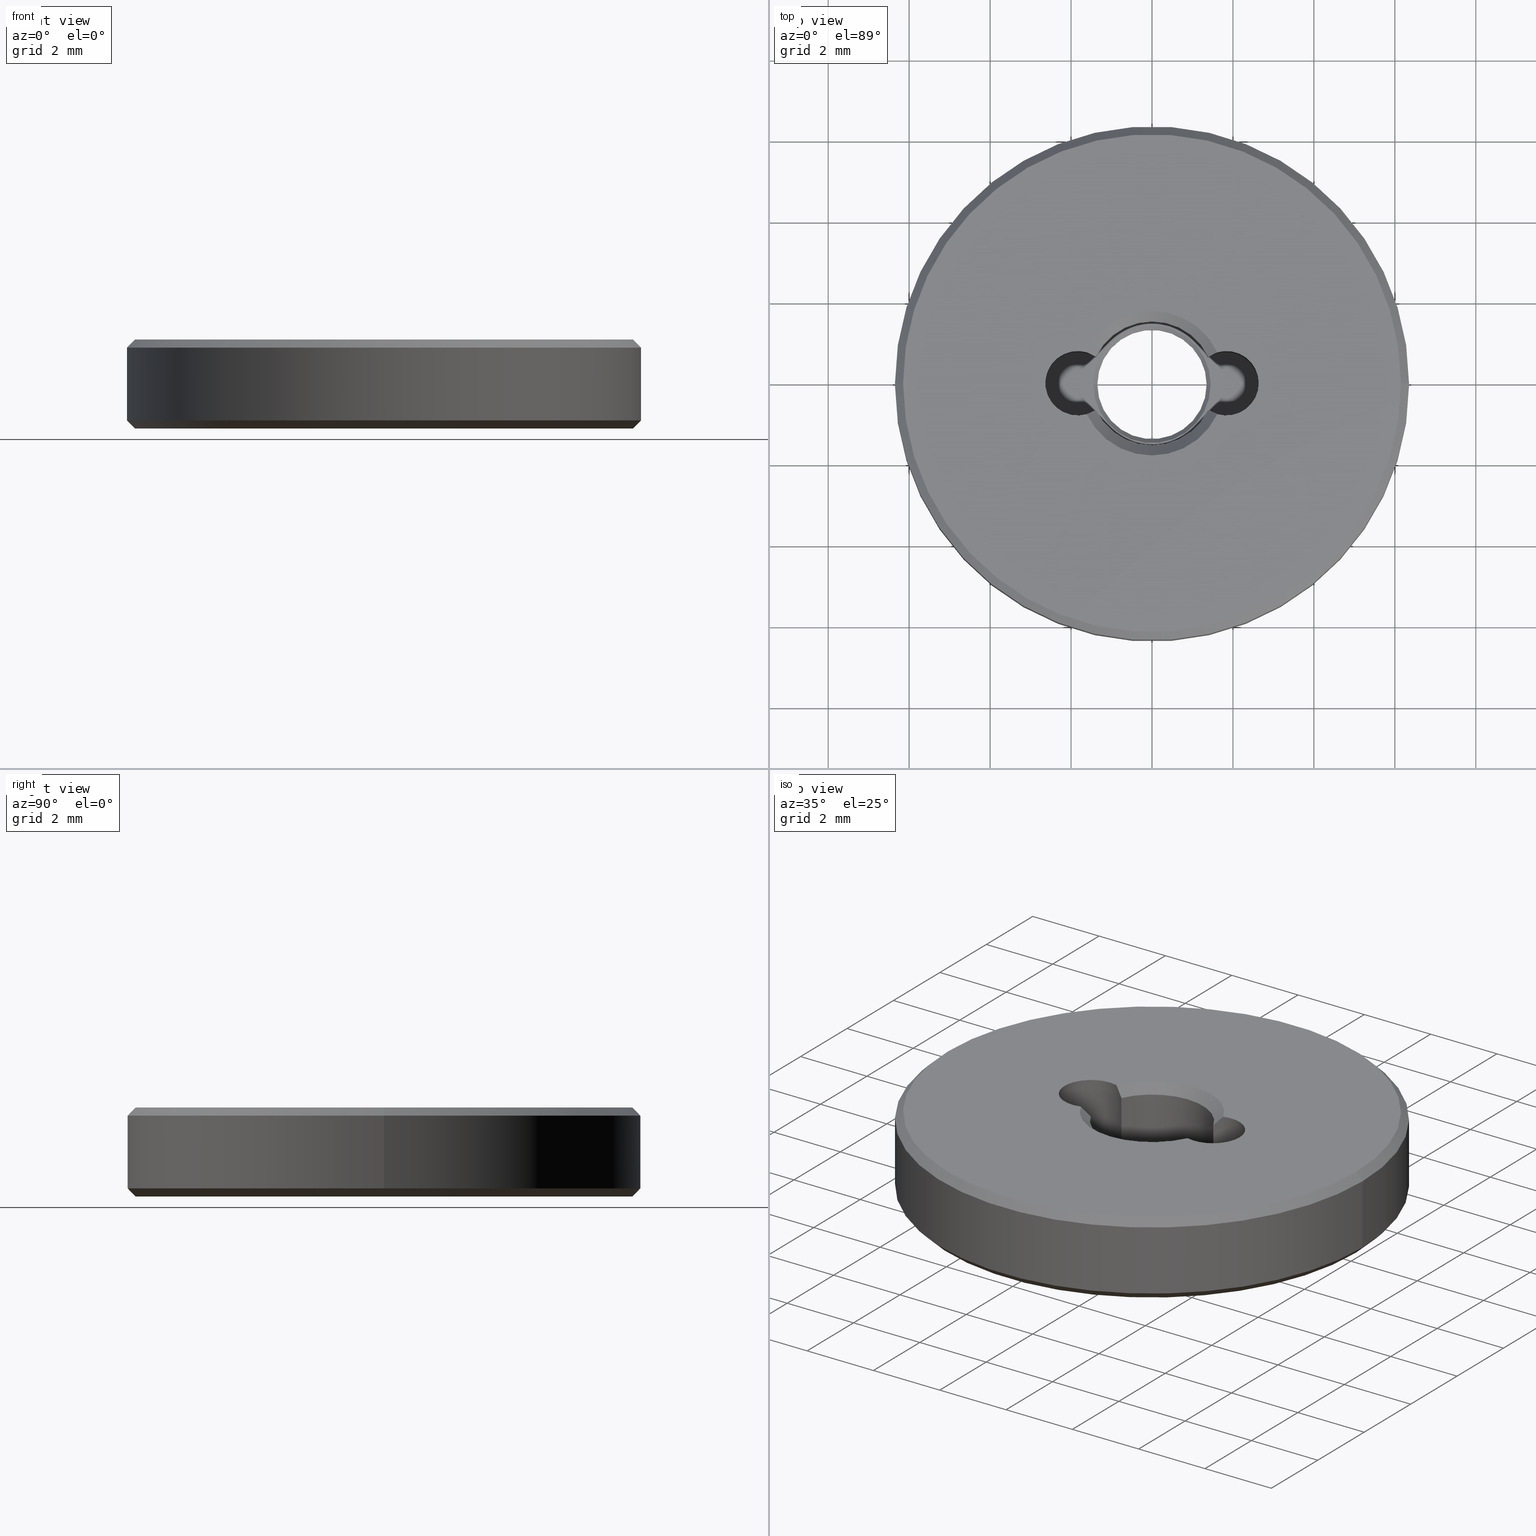
[diagram: canonical four-view strip — front | top / right | iso, engineering-drawing reading convention]
A machine part, canonical four-view strip (front | top / right | iso — engineering-drawing reading convention). The complete STEP part file that produces these views, byte-faithful:
ISO-10303-21;
HEADER;
FILE_DESCRIPTION (( 'STEP AP203' ),
    '1' );
FILE_NAME ('1.6.4.3-ZSJ-05-3.STEP',
    '2024-04-15T05:49:00',
    ( '' ),
    ( '' ),
    'SwSTEP 2.0',
    'SolidWorks 2021',
    '' );
FILE_SCHEMA (( 'CONFIG_CONTROL_DESIGN' ));
ENDSEC;

DATA;
#1 = AXIS2_PLACEMENT_3D ( 'NONE', #272, #428, #642 ) ;
#2 = VECTOR ( 'NONE', #532, 1000.000000000000000 ) ;
#3 = VERTEX_POINT ( 'NONE', #302 ) ;
#4 = ADVANCED_FACE ( 'NONE', ( #242 ), #486, .T. ) ;
#5 = EDGE_CURVE ( 'NONE', #235, #424, #351, .T. ) ;
#6 = CYLINDRICAL_SURFACE ( 'NONE', #141, 1.350000000000000089 ) ;
#7 = VERTEX_POINT ( 'NONE', #27 ) ;
#8 = SECURITY_CLASSIFICATION_LEVEL ( 'unclassified' ) ;
#9 = DIRECTION ( 'NONE',  ( -0.000000000000000000, -0.000000000000000000, -1.000000000000000000 ) ) ;
#10 = ORIENTED_EDGE ( 'NONE', *, *, #292, .F. ) ;
#11 = APPROVAL_DATE_TIME ( #274, #564 ) ;
#12 = CARTESIAN_POINT ( 'NONE',  ( 0.000000000000000000, 0.000000000000000000, 0.6000000000000000888 ) ) ;
#13 = ORIENTED_EDGE ( 'NONE', *, *, #403, .T. ) ;
#14 = VECTOR ( 'NONE', #645, 1000.000000000000000 ) ;
#15 = AXIS2_PLACEMENT_3D ( 'NONE', #61, #444, #394 ) ;
#16 = DIRECTION ( 'NONE',  ( -0.000000000000000000, -0.000000000000000000, -1.000000000000000000 ) ) ;
#17 = ORIENTED_EDGE ( 'NONE', *, *, #183, .T. ) ;
#18 = DIRECTION ( 'NONE',  ( 1.000000000000000000, 0.000000000000000000, 0.000000000000000000 ) ) ;
#19 = CARTESIAN_POINT ( 'NONE',  ( 1.834999999999999742, 2.247226876435391980E-16, 0.6000000000000003109 ) ) ;
#20 = DIRECTION ( 'NONE',  ( -0.000000000000000000, -0.000000000000000000, -1.000000000000000000 ) ) ;
#21 = DIRECTION ( 'NONE',  ( 1.000000000000000000, 0.000000000000000000, 0.000000000000000000 ) ) ;
#22 = VECTOR ( 'NONE', #88, 1000.000000000000000 ) ;
#23 = CONICAL_SURFACE ( 'NONE', #152, 6.349999999999999645, 0.7853981633974504994 ) ;
#24 = ADVANCED_FACE ( 'NONE', ( #504 ), #87, .F. ) ;
#25 = CARTESIAN_POINT ( 'NONE',  ( 6.150000000000000355, 0.000000000000000000, 0.000000000000000000 ) ) ;
#26 = EDGE_CURVE ( 'NONE', #424, #228, #70, .T. ) ;
#27 = CARTESIAN_POINT ( 'NONE',  ( 1.385136239782015943, 0.6615304960790076017, 1.949999999999997957 ) ) ;
#28 = CARTESIAN_POINT ( 'NONE',  ( 0.000000000000000000, 0.000000000000000000, 0.6000000000000000888 ) ) ;
#29 = DIRECTION ( 'NONE',  ( 0.000000000000000000, 0.000000000000000000, 1.000000000000000000 ) ) ;
#30 = CARTESIAN_POINT ( 'NONE',  ( 0.000000000000000000, 0.000000000000000000, 2.200000000000000178 ) ) ;
#31 = CARTESIAN_POINT ( 'NONE',  ( -1.834999999999999742, -2.247226876435391980E-16, 2.200000000000000178 ) ) ;
#32 = EDGE_CURVE ( 'NONE', #658, #445, #453, .T. ) ;
#33 = AXIS2_PLACEMENT_3D ( 'NONE', #704, #217, #649 ) ;
#34 = CIRCLE ( 'NONE', #266, 1.599999999999998979 ) ;
#35 = CARTESIAN_POINT ( 'NONE',  ( -1.385136239782015943, 0.6615304960790072686, 1.949999999999998179 ) ) ;
#36 = CARTESIAN_POINT ( 'NONE',  ( 1.611294277929156360, -0.7680857698934172584, 2.200000000000000178 ) ) ;
#37 = CARTESIAN_POINT ( 'NONE',  ( -6.349999999999999645, 7.776507174585692163E-16, 0.1999999999999987899 ) ) ;
#38 = ORIENTED_EDGE ( 'NONE', *, *, #505, .T. ) ;
#39 = DIRECTION ( 'NONE',  ( 0.000000000000000000, 0.000000000000000000, 1.000000000000000000 ) ) ;
#40 = CARTESIAN_POINT ( 'NONE',  ( -1.530260531068683427, 0.7444846128819502251, 2.116696400286292246 ) ) ;
#41 = VERTEX_POINT ( 'NONE', #191 ) ;
#42 = DIRECTION ( 'NONE',  ( 0.000000000000000000, 0.000000000000000000, 1.000000000000000000 ) ) ;
#43 = AXIS2_PLACEMENT_3D ( 'NONE', #633, #366, #577 ) ;
#44 = CIRCLE ( 'NONE', #346, 6.150000000000000355 ) ;
#45 = DIRECTION ( 'NONE',  ( 1.000000000000000000, 0.000000000000000000, 0.000000000000000000 ) ) ;
#46 = ORIENTED_EDGE ( 'NONE', *, *, #655, .F. ) ;
#47 = CARTESIAN_POINT ( 'NONE',  ( 0.000000000000000000, 0.000000000000000000, 2.200000000000000178 ) ) ;
#48 = DIRECTION ( 'NONE',  ( 1.000000000000000000, 0.000000000000000000, 0.000000000000000000 ) ) ;
#49 = ORIENTED_EDGE ( 'NONE', *, *, #185, .T. ) ;
#50 = APPROVAL_ROLE ( '' ) ;
#51 = DIRECTION ( 'NONE',  ( -0.000000000000000000, -0.000000000000000000, 1.000000000000000000 ) ) ;
#52 = VERTEX_POINT ( 'NONE', #407 ) ;
#53 = ADVANCED_FACE ( 'NONE', ( #359 ), #126, .F. ) ;
#54 = EDGE_CURVE ( 'NONE', #443, #3, #622, .T. ) ;
#55 = DIRECTION ( 'NONE',  ( 0.000000000000000000, 0.000000000000000000, 1.000000000000000000 ) ) ;
#56 = AXIS2_PLACEMENT_3D ( 'NONE', #625, #349, #682 ) ;
#57 = AXIS2_PLACEMENT_3D ( 'NONE', #470, #146, #529 ) ;
#58 = ORIENTED_EDGE ( 'NONE', *, *, #448, .T. ) ;
#59 = EDGE_CURVE ( 'NONE', #52, #65, #510, .T. ) ;
#60 = PERSON_AND_ORGANIZATION_ROLE ( 'creator' ) ;
#61 = CARTESIAN_POINT ( 'NONE',  ( 0.000000000000000000, 0.000000000000000000, 0.1999999999999987899 ) ) ;
#62 = EDGE_LOOP ( 'NONE', ( #273, #429, #569, #120 ) ) ;
#63 = COORDINATED_UNIVERSAL_TIME_OFFSET ( 8, 0, .AHEAD. ) ;
#64 = CARTESIAN_POINT ( 'NONE',  ( -1.385136239782015943, 0.6615304960790072686, 1.949999999999998179 ) ) ;
#65 = VERTEX_POINT ( 'NONE', #618 ) ;
#66 = CALENDAR_DATE ( 2024, 15, 4 ) ;
#67 = CARTESIAN_POINT ( 'NONE',  ( 1.385136239782015943, -0.6615304960790072686, 1.400000000000000133 ) ) ;
#68 = EDGE_CURVE ( 'NONE', #41, #222, #520, .T. ) ;
#69 = VERTEX_POINT ( 'NONE', #136 ) ;
#70 = CIRCLE ( 'NONE', #56, 1.450000000000001732 ) ;
#71 = AXIS2_PLACEMENT_3D ( 'NONE', #594, #16, #179 ) ;
#72 = LOCAL_TIME ( 13, 49, 0.000000000000000000, #336 ) ;
#73 = CARTESIAN_POINT ( 'NONE',  ( 0.000000000000000000, 0.000000000000000000, 0.000000000000000000 ) ) ;
#74 = ORIENTED_EDGE ( 'NONE', *, *, #430, .T. ) ;
#75 = DIRECTION ( 'NONE',  ( 1.000000000000000000, 0.000000000000000000, 0.000000000000000000 ) ) ;
#76 = DIRECTION ( 'NONE',  ( 0.000000000000000000, 0.000000000000000000, -1.000000000000000000 ) ) ;
#77 = EDGE_CURVE ( 'NONE', #104, #235, #498, .T. ) ;
#78 = CARTESIAN_POINT ( 'NONE',  ( 1.834999999999999742, 2.247226876435391980E-16, -1.662741699796954853 ) ) ;
#79 = ORIENTED_EDGE ( 'NONE', *, *, #258, .T. ) ;
#80 = AXIS2_PLACEMENT_3D ( 'NONE', #616, #76, #410 ) ;
#81 = AXIS2_PLACEMENT_3D ( 'NONE', #285, #288, #390 ) ;
#82 = EDGE_CURVE ( 'NONE', #531, #104, #249, .T. ) ;
#83 = DIRECTION ( 'NONE',  ( 0.000000000000000000, 0.000000000000000000, 1.000000000000000000 ) ) ;
#84 = DIRECTION ( 'NONE',  ( 1.000000000000000000, 0.000000000000000000, 0.000000000000000000 ) ) ;
#85 = ORIENTED_EDGE ( 'NONE', *, *, #68, .T. ) ;
#86 = CARTESIAN_POINT ( 'NONE',  ( 0.000000000000000000, 0.000000000000000000, 2.200000000000000178 ) ) ;
#87 = CYLINDRICAL_SURFACE ( 'NONE', #354, 1.534999999999999920 ) ;
#88 = DIRECTION ( 'NONE',  ( -0.000000000000000000, -0.000000000000000000, 1.000000000000000000 ) ) ;
#89 = VECTOR ( 'NONE', #490, 1000.000000000000114 ) ;
#90 = DIRECTION ( 'NONE',  ( 1.000000000000000000, 0.000000000000000000, 0.000000000000000000 ) ) ;
#91 = CARTESIAN_POINT ( 'NONE',  ( -1.611294277929156360, 0.7680857698934172584, 2.200000000000000178 ) ) ;
#92 = VERTEX_POINT ( 'NONE', #199 ) ;
#93 = DIRECTION ( 'NONE',  ( -1.000000000000000000, 0.000000000000000000, 0.000000000000000000 ) ) ;
#94 = DIRECTION ( 'NONE',  ( -1.000000000000000000, 0.000000000000000000, 0.000000000000000000 ) ) ;
#95 = EDGE_LOOP ( 'NONE', ( #200, #10, #485, #85, #79, #264 ) ) ;
#96 = EDGE_CURVE ( 'NONE', #386, #698, #413, .T. ) ;
#97 = FACE_BOUND ( 'NONE', #629, .T. ) ;
#98 = CARTESIAN_POINT ( 'NONE',  ( 1.350000000000000089, 0.000000000000000000, 0.4999999999999991673 ) ) ;
#99 = ORIENTED_EDGE ( 'NONE', *, *, #96, .T. ) ;
#100 = AXIS2_PLACEMENT_3D ( 'NONE', #376, #223, #275 ) ;
#101 = AXIS2_PLACEMENT_3D ( 'NONE', #568, #83, #304 ) ;
#102 = CARTESIAN_POINT ( 'NONE',  ( -1.530260531068683649, -0.7444846128819508912, 2.116696400286292690 ) ) ;
#103 = CONICAL_SURFACE ( 'NONE', #177, 1.350000000000000089, 0.7853981633974516097 ) ;
#104 = VERTEX_POINT ( 'NONE', #447 ) ;
#105 = EDGE_CURVE ( 'NONE', #531, #52, #670, .T. ) ;
#106 = CARTESIAN_POINT ( 'NONE',  ( 0.000000000000000000, 0.000000000000000000, 0.000000000000000000 ) ) ;
#107 = EDGE_CURVE ( 'NONE', #92, #360, #613, .T. ) ;
#108 = ORIENTED_EDGE ( 'NONE', *, *, #471, .F. ) ;
#109 = CALENDAR_DATE ( 2024, 15, 4 ) ;
#110 = DIRECTION ( 'NONE',  ( -0.000000000000000000, -0.000000000000000000, -1.000000000000000000 ) ) ;
#111 = ORIENTED_EDGE ( 'NONE', *, *, #206, .F. ) ;
#112 = APPROVAL_ROLE ( '' ) ;
#113 = CARTESIAN_POINT ( 'NONE',  ( 0.000000000000000000, 0.000000000000000000, 0.000000000000000000 ) ) ;
#114 = AXIS2_PLACEMENT_3D ( 'NONE', #468, #522, #214 ) ;
#115 = AXIS2_PLACEMENT_3D ( 'NONE', #507, #676, #402 ) ;
#116 = ORIENTED_EDGE ( 'NONE', *, *, #471, .T. ) ;
#117 = PRODUCT ( '1.6.4.3-ZSJ-05-3', '1.6.4.3-ZSJ-05-3', '', ( #149 ) ) ;
#118 = CALENDAR_DATE ( 2024, 15, 4 ) ;
#119 = PLANE ( 'NONE',  #589 ) ;
#120 = ORIENTED_EDGE ( 'NONE', *, *, #190, .F. ) ;
#121 = APPROVAL_DATE_TIME ( #648, #518 ) ;
#122 = EDGE_CURVE ( 'NONE', #651, #7, #154, .T. ) ;
#123 = DIRECTION ( 'NONE',  ( 0.000000000000000000, 0.000000000000000000, 1.000000000000000000 ) ) ;
#124 = EDGE_LOOP ( 'NONE', ( #374, #244, #392, #701 ) ) ;
#125 = DIRECTION ( 'NONE',  ( 0.7071067811865490160, 0.000000000000000000, 0.7071067811865460184 ) ) ;
#126 = CONICAL_SURFACE ( 'NONE', #534, 1.350000000000000089, 0.7853981633974516097 ) ;
#127 = ORIENTED_EDGE ( 'NONE', *, *, #122, .T. ) ;
#128 = AXIS2_PLACEMENT_3D ( 'NONE', #86, #143, #516 ) ;
#129 = AXIS2_PLACEMENT_3D ( 'NONE', #271, #412, #693 ) ;
#130 =( GEOMETRIC_REPRESENTATION_CONTEXT ( 3 ) GLOBAL_UNCERTAINTY_ASSIGNED_CONTEXT ( ( #687 ) ) GLOBAL_UNIT_ASSIGNED_CONTEXT ( ( #425, #375, #158 ) ) REPRESENTATION_CONTEXT ( 'NONE', 'WORKASPACE' ) );
#131 = CARTESIAN_POINT ( 'NONE',  ( 0.000000000000000000, 0.000000000000000000, 2.000000000000000444 ) ) ;
#132 = ADVANCED_FACE ( 'NONE', ( #263 ), #367, .F. ) ;
#133 = CARTESIAN_POINT ( 'NONE',  ( 0.000000000000000000, 0.000000000000000000, 2.200000000000000178 ) ) ;
#134 = EDGE_CURVE ( 'NONE', #588, #698, #318, .T. ) ;
#135 = DIRECTION ( 'NONE',  ( 1.000000000000000000, 0.000000000000000000, 0.000000000000000000 ) ) ;
#136 = CARTESIAN_POINT ( 'NONE',  ( 1.611294277929156360, 0.7680857698934177025, 2.200000000000000178 ) ) ;
#137 = DIRECTION ( 'NONE',  ( -0.000000000000000000, -0.000000000000000000, 1.000000000000000000 ) ) ;
#138 = EDGE_LOOP ( 'NONE', ( #535, #473, #433, #603 ) ) ;
#139 = ORIENTED_EDGE ( 'NONE', *, *, #559, .T. ) ;
#140 = AXIS2_PLACEMENT_3D ( 'NONE', #321, #533, #94 ) ;
#141 = AXIS2_PLACEMENT_3D ( 'NONE', #434, #171, #385 ) ;
#142 = LOCAL_TIME ( 13, 49, 0.000000000000000000, #593 ) ;
#143 = DIRECTION ( 'NONE',  ( 0.000000000000000000, 0.000000000000000000, 1.000000000000000000 ) ) ;
#144 = CARTESIAN_POINT ( 'NONE',  ( -1.385136239782015943, -0.6615304960790077127, 1.400000000000000133 ) ) ;
#145 = ORIENTED_EDGE ( 'NONE', *, *, #506, .T. ) ;
#146 = DIRECTION ( 'NONE',  ( 0.000000000000000000, 0.000000000000000000, 1.000000000000000000 ) ) ;
#147 = DIRECTION ( 'NONE',  ( -0.000000000000000000, -0.000000000000000000, -1.000000000000000000 ) ) ;
#148 = VERTEX_POINT ( 'NONE', #212 ) ;
#149 = MECHANICAL_CONTEXT ( 'NONE', #326, 'mechanical' ) ;
#150 = DIRECTION ( 'NONE',  ( 0.000000000000000000, 0.000000000000000000, 1.000000000000000000 ) ) ;
#151 = ORIENTED_EDGE ( 'NONE', *, *, #451, .F. ) ;
#152 = AXIS2_PLACEMENT_3D ( 'NONE', #408, #459, #406 ) ;
#153 = APPROVAL_PERSON_ORGANIZATION ( #652, #564, #50 ) ;
#154 = LINE ( 'NONE', #325, #22 ) ;
#155 = EDGE_CURVE ( 'NONE', #377, #41, #607, .T. ) ;
#156 = ORIENTED_EDGE ( 'NONE', *, *, #363, .T. ) ;
#157 = EDGE_CURVE ( 'NONE', #658, #3, #636, .T. ) ;
#158 =( NAMED_UNIT ( * ) SI_UNIT ( $, .STERADIAN. ) SOLID_ANGLE_UNIT ( ) );
#159 = DIRECTION ( 'NONE',  ( -0.7071067811865490160, 8.659560562354953812E-17, 0.7071067811865460184 ) ) ;
#160 = EDGE_LOOP ( 'NONE', ( #167, #598, #116, #541 ) ) ;
#161 = CARTESIAN_POINT ( 'NONE',  ( 1.530260531068682983, 0.7444846128819506692, 2.116696400286292246 ) ) ;
#162 = CARTESIAN_POINT ( 'NONE',  ( 0.000000000000000000, 0.000000000000000000, 2.000000000000000444 ) ) ;
#163 = ORIENTED_EDGE ( 'NONE', *, *, #190, .T. ) ;
#164 = EDGE_CURVE ( 'NONE', #651, #443, #335, .T. ) ;
#165 = CONICAL_SURFACE ( 'NONE', #277, 1.599999999999998979, 0.7853981633974439491 ) ;
#166 = CARTESIAN_POINT ( 'NONE',  ( -1.611294277929156360, -0.7680857698934177025, 2.200000000000000178 ) ) ;
#167 = ORIENTED_EDGE ( 'NONE', *, *, #134, .F. ) ;
#168 = CALENDAR_DATE ( 2024, 15, 4 ) ;
#169 = CARTESIAN_POINT ( 'NONE',  ( 1.350000000000000089, 0.000000000000000000, 0.000000000000000000 ) ) ;
#170 = ORIENTED_EDGE ( 'NONE', *, *, #685, .F. ) ;
#171 = DIRECTION ( 'NONE',  ( -0.000000000000000000, -0.000000000000000000, 1.000000000000000000 ) ) ;
#172 = VERTEX_POINT ( 'NONE', #314 ) ;
#173 = PERSON_AND_ORGANIZATION ( #422, #463 ) ;
#174 = CARTESIAN_POINT ( 'NONE',  ( -6.349999999999999645, 0.000000000000000000, 2.000000000000000444 ) ) ;
#175 = AXIS2_PLACEMENT_3D ( 'NONE', #681, #454, #514 ) ;
#176 = VERTEX_POINT ( 'NONE', #476 ) ;
#177 = AXIS2_PLACEMENT_3D ( 'NONE', #479, #39, #475 ) ;
#178 = COORDINATED_UNIVERSAL_TIME_OFFSET ( 8, 0, .AHEAD. ) ;
#179 = DIRECTION ( 'NONE',  ( 1.000000000000000000, 0.000000000000000000, 0.000000000000000000 ) ) ;
#180 = ORIENTED_EDGE ( 'NONE', *, *, #448, .F. ) ;
#181 = CARTESIAN_POINT ( 'NONE',  ( -1.385136239782015721, -0.6615304960790076017, 1.949999999999997957 ) ) ;
#182 = ORIENTED_EDGE ( 'NONE', *, *, #107, .F. ) ;
#183 = EDGE_CURVE ( 'NONE', #299, #65, #466, .T. ) ;
#184 = DIRECTION ( 'NONE',  ( 1.000000000000000000, 0.000000000000000000, 0.000000000000000000 ) ) ;
#185 = EDGE_CURVE ( 'NONE', #235, #104, #599, .T. ) ;
#186 = CIRCLE ( 'NONE', #33, 6.349999999999999645 ) ;
#187 = CARTESIAN_POINT ( 'NONE',  ( -1.599999999999998979, 0.000000000000000000, 0.000000000000000000 ) ) ;
#188 = AXIS2_PLACEMENT_3D ( 'NONE', #12, #55, #230 ) ;
#189 = DIRECTION ( 'NONE',  ( 0.000000000000000000, 0.000000000000000000, 1.000000000000000000 ) ) ;
#190 = EDGE_CURVE ( 'NONE', #705, #222, #323, .T. ) ;
#191 = CARTESIAN_POINT ( 'NONE',  ( -1.611294277929156360, 0.7680857698934172584, 2.200000000000000178 ) ) ;
#192 = FACE_OUTER_BOUND ( 'NONE', #95, .T. ) ;
#193 = EDGE_LOOP ( 'NONE', ( #347, #17, #626, #294 ) ) ;
#194 = ORIENTED_EDGE ( 'NONE', *, *, #482, .T. ) ;
#195 = CARTESIAN_POINT ( 'NONE',  ( 1.530260531068682761, -0.7444846128819502251, 2.116696400286291802 ) ) ;
#196 = DIRECTION ( 'NONE',  ( -0.000000000000000000, -0.000000000000000000, 1.000000000000000000 ) ) ;
#197 = VECTOR ( 'NONE', #159, 1000.000000000000114 ) ;
#198 = MANIFOLD_SOLID_BREP ( '����(Բ��)1', #671 ) ;
#199 = CARTESIAN_POINT ( 'NONE',  ( -6.149999999999999467, 0.000000000000000000, 2.200000000000000178 ) ) ;
#200 = ORIENTED_EDGE ( 'NONE', *, *, #451, .T. ) ;
#201 = APPLICATION_CONTEXT ( 'configuration controlled 3d designs of mechanical parts and assemblies' ) ;
#202 = DIRECTION ( 'NONE',  ( 1.000000000000000000, 0.000000000000000000, 0.000000000000000000 ) ) ;
#203 = EDGE_LOOP ( 'NONE', ( #583, #74, #579, #170 ) ) ;
#204 = ADVANCED_FACE ( 'NONE', ( #525 ), #207, .F. ) ;
#205 = FACE_OUTER_BOUND ( 'NONE', #560, .T. ) ;
#206 = EDGE_CURVE ( 'NONE', #176, #386, #567, .T. ) ;
#207 = CYLINDRICAL_SURFACE ( 'NONE', #1, 1.350000000000000089 ) ;
#208 = EDGE_LOOP ( 'NONE', ( #566, #38 ) ) ;
#209 = AXIS2_PLACEMENT_3D ( 'NONE', #515, #29, #563 ) ;
#210 = CIRCLE ( 'NONE', #663, 1.350000000000000089 ) ;
#211 = FACE_OUTER_BOUND ( 'NONE', #62, .T. ) ;
#212 = CARTESIAN_POINT ( 'NONE',  ( 6.349999999999999645, 7.776507174585692163E-16, 0.1999999999999987899 ) ) ;
#213 = EDGE_LOOP ( 'NONE', ( #478, #595, #683, #556 ) ) ;
#214 = DIRECTION ( 'NONE',  ( 1.000000000000000000, 0.000000000000000000, 0.000000000000000000 ) ) ;
#215 = ORIENTED_EDGE ( 'NONE', *, *, #164, .F. ) ;
#216 = PERSON_AND_ORGANIZATION ( #422, #463 ) ;
#217 = DIRECTION ( 'NONE',  ( -0.000000000000000000, -0.000000000000000000, 1.000000000000000000 ) ) ;
#218 = ORIENTED_EDGE ( 'NONE', *, *, #363, .F. ) ;
#219 = EDGE_CURVE ( 'NONE', #698, #148, #186, .T. ) ;
#220 = AXIS2_PLACEMENT_3D ( 'NONE', #696, #150, #48 ) ;
#221 = CARTESIAN_POINT ( 'NONE',  ( 0.000000000000000000, 0.000000000000000000, 0.2500000000000011102 ) ) ;
#222 = VERTEX_POINT ( 'NONE', #166 ) ;
#223 = DIRECTION ( 'NONE',  ( -0.000000000000000000, -0.000000000000000000, 1.000000000000000000 ) ) ;
#224 = EDGE_LOOP ( 'NONE', ( #218, #127, #276, #281 ) ) ;
#225 = COORDINATED_UNIVERSAL_TIME_OFFSET ( 8, 0, .AHEAD. ) ;
#226 = CARTESIAN_POINT ( 'NONE',  ( -1.385136239782015943, 0.6615304960790072686, 1.400000000000000133 ) ) ;
#227 = ADVANCED_FACE ( 'NONE', ( #582 ), #700, .F. ) ;
#228 = VERTEX_POINT ( 'NONE', #638 ) ;
#229 = PERSON_AND_ORGANIZATION_ROLE ( 'design_supplier' ) ;
#230 = DIRECTION ( 'NONE',  ( 1.000000000000000000, 0.000000000000000000, 0.000000000000000000 ) ) ;
#231 = VECTOR ( 'NONE', #147, 1000.000000000000000 ) ;
#232 = AXIS2_PLACEMENT_3D ( 'NONE', #446, #358, #306 ) ;
#233 = ORIENTED_EDGE ( 'NONE', *, *, #26, .T. ) ;
#234 = DIRECTION ( 'NONE',  ( 0.000000000000000000, 0.000000000000000000, -1.000000000000000000 ) ) ;
#235 = VERTEX_POINT ( 'NONE', #98 ) ;
#236 = ADVANCED_FACE ( 'NONE', ( #585 ), #398, .F. ) ;
#237 = EDGE_CURVE ( 'NONE', #176, #148, #269, .T. ) ;
#238 = DIRECTION ( 'NONE',  ( -0.000000000000000000, -0.000000000000000000, -1.000000000000000000 ) ) ;
#239 = DIRECTION ( 'NONE',  ( 0.000000000000000000, 0.000000000000000000, 1.000000000000000000 ) ) ;
#240 = DIRECTION ( 'NONE',  ( -0.000000000000000000, -0.000000000000000000, -1.000000000000000000 ) ) ;
#241 = VECTOR ( 'NONE', #401, 1000.000000000000000 ) ;
#242 = FACE_OUTER_BOUND ( 'NONE', #203, .T. ) ;
#243 = VECTOR ( 'NONE', #51, 1000.000000000000000 ) ;
#244 = ORIENTED_EDGE ( 'NONE', *, *, #237, .T. ) ;
#245 = CC_DESIGN_APPROVAL ( #518, ( #697 ) ) ;
#246 = CARTESIAN_POINT ( 'NONE',  ( -1.834999999999999742, -2.247226876435391980E-16, 0.6000000000000003109 ) ) ;
#247 = DIRECTION ( 'NONE',  ( 1.000000000000000000, 0.000000000000000000, 0.000000000000000000 ) ) ;
#248 = FACE_OUTER_BOUND ( 'NONE', #124, .T. ) ;
#249 = LINE ( 'NONE', #458, #545 ) ;
#250 = CC_DESIGN_DATE_AND_TIME_ASSIGNMENT ( #283, #659, ( #697 ) ) ;
#251 = DIRECTION ( 'NONE',  ( -0.000000000000000000, -0.000000000000000000, -1.000000000000000000 ) ) ;
#252 = ORIENTED_EDGE ( 'NONE', *, *, #77, .T. ) ;
#253 = VECTOR ( 'NONE', #234, 1000.000000000000000 ) ;
#254 = VECTOR ( 'NONE', #125, 1000.000000000000114 ) ;
#255 = LOCAL_TIME ( 13, 49, 0.000000000000000000, #178 ) ;
#256 = DIRECTION ( 'NONE',  ( 0.000000000000000000, 0.000000000000000000, 1.000000000000000000 ) ) ;
#257 = CARTESIAN_POINT ( 'NONE',  ( 0.000000000000000000, 0.000000000000000000, 0.4999999999999991673 ) ) ;
#258 = EDGE_CURVE ( 'NONE', #222, #445, #295, .T. ) ;
#259 = EDGE_CURVE ( 'NONE', #148, #698, #409, .T. ) ;
#260 = CARTESIAN_POINT ( 'NONE',  ( -1.454874495876763874, 0.7089549372858433562, 2.033367882693068118 ) ) ;
#261 = ORIENTED_EDGE ( 'NONE', *, *, #164, .T. ) ;
#262 = CARTESIAN_POINT ( 'NONE',  ( 1.611294277929156360, 0.7680857698934177025, 2.200000000000000178 ) ) ;
#263 = FACE_OUTER_BOUND ( 'NONE', #679, .T. ) ;
#264 = ORIENTED_EDGE ( 'NONE', *, *, #32, .F. ) ;
#265 = AXIS2_PLACEMENT_3D ( 'NONE', #162, #530, #45 ) ;
#266 = AXIS2_PLACEMENT_3D ( 'NONE', #674, #189, #135 ) ;
#267 = CYLINDRICAL_SURFACE ( 'NONE', #293, 6.349999999999999645 ) ;
#268 = AXIS2_PLACEMENT_3D ( 'NONE', #581, #256, #465 ) ;
#269 = LINE ( 'NONE', #426, #14 ) ;
#270 = EDGE_LOOP ( 'NONE', ( #194, #380, #252, #344 ) ) ;
#271 = CARTESIAN_POINT ( 'NONE',  ( 0.000000000000000000, 0.000000000000000000, 0.6000000000000000888 ) ) ;
#272 = CARTESIAN_POINT ( 'NONE',  ( 0.000000000000000000, 0.000000000000000000, 0.000000000000000000 ) ) ;
#273 = ORIENTED_EDGE ( 'NONE', *, *, #611, .F. ) ;
#274 = DATE_AND_TIME ( #118, #255 ) ;
#275 = DIRECTION ( 'NONE',  ( 1.000000000000000000, 0.000000000000000000, 0.000000000000000000 ) ) ;
#276 = ORIENTED_EDGE ( 'NONE', *, *, #352, .T. ) ;
#277 = AXIS2_PLACEMENT_3D ( 'NONE', #106, #110, #484 ) ;
#278 = APPROVAL_ROLE ( '' ) ;
#279 = CONICAL_SURFACE ( 'NONE', #521, 1.534999999999999920, 0.7853981633974482790 ) ;
#280 = FACE_OUTER_BOUND ( 'NONE', #270, .T. ) ;
#281 = ORIENTED_EDGE ( 'NONE', *, *, #292, .T. ) ;
#282 = ADVANCED_FACE ( 'NONE', ( #653 ), #165, .F. ) ;
#283 = DATE_AND_TIME ( #109, #590 ) ;
#284 = ADVANCED_FACE ( 'NONE', ( #543 ), #432, .T. ) ;
#285 = CARTESIAN_POINT ( 'NONE',  ( 1.834999999999999742, 2.247226876435391980E-16, 2.200000000000000178 ) ) ;
#286 = ORIENTED_EDGE ( 'NONE', *, *, #157, .T. ) ;
#287 = DATE_AND_TIME ( #168, #142 ) ;
#288 = DIRECTION ( 'NONE',  ( 0.000000000000000000, 0.000000000000000000, 1.000000000000000000 ) ) ;
#289 = ORIENTED_EDGE ( 'NONE', *, *, #259, .F. ) ;
#290 = PERSON_AND_ORGANIZATION ( #422, #463 ) ;
#291 = DIRECTION ( 'NONE',  ( 0.000000000000000000, 0.000000000000000000, -1.000000000000000000 ) ) ;
#292 = EDGE_CURVE ( 'NONE', #377, #641, #591, .T. ) ;
#293 = AXIS2_PLACEMENT_3D ( 'NONE', #47, #320, #93 ) ;
#294 = ORIENTED_EDGE ( 'NONE', *, *, #105, .F. ) ;
#295 = B_SPLINE_CURVE_WITH_KNOTS ( 'NONE', 3,
 ( #587, #102, #538, #656 ),
 .UNSPECIFIED., .F., .F.,
 ( 4, 4 ),
 ( 2.829452205434789979E-07, 0.0003538384353437005244 ),
 .UNSPECIFIED. ) ;
#296 = CARTESIAN_POINT ( 'NONE',  ( 6.349999999999999645, 0.000000000000000000, 0.1999999999999987899 ) ) ;
#297 = DIRECTION ( 'NONE',  ( 0.000000000000000000, 0.000000000000000000, 1.000000000000000000 ) ) ;
#298 = DIRECTION ( 'NONE',  ( 1.000000000000000000, 0.000000000000000000, 0.000000000000000000 ) ) ;
#299 = VERTEX_POINT ( 'NONE', #665 ) ;
#300 = CYLINDRICAL_SURFACE ( 'NONE', #232, 0.8000000000000008216 ) ;
#301 = VECTOR ( 'NONE', #309, 1000.000000000000000 ) ;
#302 = CARTESIAN_POINT ( 'NONE',  ( 1.385136239782015943, -0.6615304960790072686, 0.6000000000000003109 ) ) ;
#303 = CIRCLE ( 'NONE', #81, 0.8000000000000008216 ) ;
#304 = DIRECTION ( 'NONE',  ( 1.000000000000000000, 0.000000000000000000, 0.000000000000000000 ) ) ;
#305 = ORIENTED_EDGE ( 'NONE', *, *, #155, .F. ) ;
#306 = DIRECTION ( 'NONE',  ( 1.000000000000000000, 0.000000000000000000, 0.000000000000000000 ) ) ;
#307 = B_SPLINE_CURVE_WITH_KNOTS ( 'NONE', 3,
 ( #262, #161, #467, #417 ),
 .UNSPECIFIED., .F., .F.,
 ( 4, 4 ),
 ( 2.829452205434789979E-07, 0.0003538384353437006328 ),
 .UNSPECIFIED. ) ;
#308 = DIRECTION ( 'NONE',  ( 1.000000000000000000, 0.000000000000000000, 0.000000000000000000 ) ) ;
#309 = DIRECTION ( 'NONE',  ( 0.7071067811865444641, 8.659560562354895880E-17, -0.7071067811865505703 ) ) ;
#310 = EDGE_CURVE ( 'NONE', #104, #228, #540, .T. ) ;
#311 = AXIS2_PLACEMENT_3D ( 'NONE', #31, #239, #84 ) ;
#312 = EDGE_CURVE ( 'NONE', #299, #235, #552, .T. ) ;
#313 = DIRECTION ( 'NONE',  ( 0.000000000000000000, 0.000000000000000000, 1.000000000000000000 ) ) ;
#314 = CARTESIAN_POINT ( 'NONE',  ( 1.385136239782015943, -0.6615304960790072686, 1.949999999999998179 ) ) ;
#315 = DESIGN_CONTEXT ( 'detailed design', #201, 'design' ) ;
#316 = ORIENTED_EDGE ( 'NONE', *, *, #655, .T. ) ;
#317 = CARTESIAN_POINT ( 'NONE',  ( 1.611294277929156360, -0.7680857698934172584, 2.200000000000000178 ) ) ;
#318 = LINE ( 'NONE', #37, #197 ) ;
#319 = ORIENTED_EDGE ( 'NONE', *, *, #361, .T. ) ;
#320 = DIRECTION ( 'NONE',  ( -0.000000000000000000, -0.000000000000000000, -1.000000000000000000 ) ) ;
#321 = CARTESIAN_POINT ( 'NONE',  ( 0.000000000000000000, 0.000000000000000000, 0.000000000000000000 ) ) ;
#322 = ORIENTED_EDGE ( 'NONE', *, *, #312, .T. ) ;
#323 = CIRCLE ( 'NONE', #114, 1.785000000000001918 ) ;
#324 = VECTOR ( 'NONE', #396, 1000.000000000000000 ) ;
#325 = CARTESIAN_POINT ( 'NONE',  ( 1.385136239782015943, 0.6615304960790077127, 1.400000000000000133 ) ) ;
#326 = APPLICATION_CONTEXT ( 'configuration controlled 3d designs of mechanical parts and assemblies' ) ;
#327 = ORIENTED_EDGE ( 'NONE', *, *, #157, .F. ) ;
#328 = CARTESIAN_POINT ( 'NONE',  ( 0.000000000000000000, 0.000000000000000000, 2.200000000000000178 ) ) ;
#329 = EDGE_LOOP ( 'NONE', ( #261, #58, #438, #316, #368 ) ) ;
#330 = PERSON_AND_ORGANIZATION ( #422, #463 ) ;
#331 = DIRECTION ( 'NONE',  ( 1.000000000000000000, 0.000000000000000000, 0.000000000000000000 ) ) ;
#332 = ORIENTED_EDGE ( 'NONE', *, *, #54, .T. ) ;
#333 = EDGE_CURVE ( 'NONE', #531, #299, #210, .T. ) ;
#334 = ADVANCED_FACE ( 'NONE', ( #706 ), #378, .T. ) ;
#335 = CIRCLE ( 'NONE', #650, 0.8000000000000008216 ) ;
#336 = COORDINATED_UNIVERSAL_TIME_OFFSET ( 8, 0, .AHEAD. ) ;
#337 = VECTOR ( 'NONE', #496, 1000.000000000000000 ) ;
#338 = CARTESIAN_POINT ( 'NONE',  ( 1.450000000000001732, 0.000000000000000000, 0.6000000000000000888 ) ) ;
#339 = EDGE_LOOP ( 'NONE', ( #286, #497, #215, #156, #151 ) ) ;
#340 = APPROVAL_STATUS ( 'not_yet_approved' ) ;
#341 = CARTESIAN_POINT ( 'NONE',  ( 6.149999999999999467, 7.531577814756219106E-16, 2.200000000000000178 ) ) ;
#342 = ORIENTED_EDGE ( 'NONE', *, *, #333, .T. ) ;
#343 = DIRECTION ( 'NONE',  ( 1.000000000000000000, 0.000000000000000000, -0.000000000000000000 ) ) ;
#344 = ORIENTED_EDGE ( 'NONE', *, *, #312, .F. ) ;
#345 = FACE_OUTER_BOUND ( 'NONE', #612, .T. ) ;
#346 = AXIS2_PLACEMENT_3D ( 'NONE', #558, #251, #18 ) ;
#347 = ORIENTED_EDGE ( 'NONE', *, *, #482, .F. ) ;
#348 = DIRECTION ( 'NONE',  ( 1.000000000000000000, 0.000000000000000000, 0.000000000000000000 ) ) ;
#349 = DIRECTION ( 'NONE',  ( -0.000000000000000000, -0.000000000000000000, -1.000000000000000000 ) ) ;
#350 = CARTESIAN_POINT ( 'NONE',  ( -6.150000000000000355, 7.654042494670957606E-16, 0.000000000000000000 ) ) ;
#351 = LINE ( 'NONE', #571, #460 ) ;
#352 = EDGE_CURVE ( 'NONE', #7, #377, #356, .T. ) ;
#353 = DIRECTION ( 'NONE',  ( 1.000000000000000000, 0.000000000000000000, 0.000000000000000000 ) ) ;
#354 = AXIS2_PLACEMENT_3D ( 'NONE', #508, #675, #247 ) ;
#355 = DIRECTION ( 'NONE',  ( -0.000000000000000000, -0.000000000000000000, -1.000000000000000000 ) ) ;
#356 = CIRCLE ( 'NONE', #462, 1.534999999999999920 ) ;
#357 = PRODUCT_DEFINITION_SHAPE ( 'NONE', 'NONE',  #662 ) ;
#358 = DIRECTION ( 'NONE',  ( -0.000000000000000000, -0.000000000000000000, 1.000000000000000000 ) ) ;
#359 = FACE_OUTER_BOUND ( 'NONE', #213, .T. ) ;
#360 = VERTEX_POINT ( 'NONE', #442 ) ;
#361 = EDGE_CURVE ( 'NONE', #41, #69, #601, .T. ) ;
#362 = CARTESIAN_POINT ( 'NONE',  ( 2.635000000000001119, 2.247226876435391980E-16, 2.200000000000000178 ) ) ;
#363 = EDGE_CURVE ( 'NONE', #651, #641, #672, .T. ) ;
#364 = ORIENTED_EDGE ( 'NONE', *, *, #611, .T. ) ;
#365 = CARTESIAN_POINT ( 'NONE',  ( 1.385136239782015943, 0.6615304960790077127, 0.6000000000000003109 ) ) ;
#366 = DIRECTION ( 'NONE',  ( 0.000000000000000000, 0.000000000000000000, 1.000000000000000000 ) ) ;
#367 = CONICAL_SURFACE ( 'NONE', #220, 1.534999999999999920, 0.7853981633974482790 ) ;
#368 = ORIENTED_EDGE ( 'NONE', *, *, #122, .F. ) ;
#369 = AXIS2_PLACEMENT_3D ( 'NONE', #78, #137, #353 ) ;
#370 = DIRECTION ( 'NONE',  ( -0.000000000000000000, -0.000000000000000000, -1.000000000000000000 ) ) ;
#371 = EDGE_LOOP ( 'NONE', ( #491, #550 ) ) ;
#372 = FACE_OUTER_BOUND ( 'NONE', #138, .T. ) ;
#373 = DIRECTION ( 'NONE',  ( 0.000000000000000000, 0.000000000000000000, 1.000000000000000000 ) ) ;
#374 = ORIENTED_EDGE ( 'NONE', *, *, #578, .T. ) ;
#375 =( NAMED_UNIT ( * ) PLANE_ANGLE_UNIT ( ) SI_UNIT ( $, .RADIAN. ) );
#376 = CARTESIAN_POINT ( 'NONE',  ( 0.000000000000000000, 0.000000000000000000, 0.1999999999999987899 ) ) ;
#377 = VERTEX_POINT ( 'NONE', #64 ) ;
#378 = CONICAL_SURFACE ( 'NONE', #15, 6.349999999999999645, 0.7853981633974504994 ) ;
#379 = DIRECTION ( 'NONE',  ( -0.000000000000000000, -0.000000000000000000, 1.000000000000000000 ) ) ;
#380 = ORIENTED_EDGE ( 'NONE', *, *, #82, .T. ) ;
#381 = PERSON_AND_ORGANIZATION_ROLE ( 'classification_officer' ) ;
#382 = DIRECTION ( 'NONE',  ( 1.000000000000000000, 0.000000000000000000, 0.000000000000000000 ) ) ;
#383 = ADVANCED_FACE ( 'NONE', ( #280 ), #6, .F. ) ;
#384 = ORIENTED_EDGE ( 'NONE', *, *, #684, .F. ) ;
#385 = DIRECTION ( 'NONE',  ( 1.000000000000000000, 0.000000000000000000, 0.000000000000000000 ) ) ;
#386 = VERTEX_POINT ( 'NONE', #174 ) ;
#387 = CC_DESIGN_PERSON_AND_ORGANIZATION_ASSIGNMENT ( #548, #495, ( #662 ) ) ;
#388 = AXIS2_PLACEMENT_3D ( 'NONE', #517, #456, #404 ) ;
#389 = APPROVAL_DATE_TIME ( #287, #604 ) ;
#390 = DIRECTION ( 'NONE',  ( -1.000000000000000000, 0.000000000000000000, 0.000000000000000000 ) ) ;
#391 = B_SPLINE_CURVE_WITH_KNOTS ( 'NONE', 3,
 ( #457, #678, #195, #317 ),
 .UNSPECIFIED., .F., .F.,
 ( 4, 4 ),
 ( 2.827272947538202757E-07, 0.0003538382174179105348 ),
 .UNSPECIFIED. ) ;
#392 = ORIENTED_EDGE ( 'NONE', *, *, #259, .T. ) ;
#393 = PERSON_AND_ORGANIZATION ( #422, #463 ) ;
#394 = DIRECTION ( 'NONE',  ( 1.000000000000000000, 0.000000000000000000, 0.000000000000000000 ) ) ;
#395 = EDGE_LOOP ( 'NONE', ( #646, #342, #322, #49 ) ) ;
#396 = DIRECTION ( 'NONE',  ( -0.000000000000000000, -0.000000000000000000, 1.000000000000000000 ) ) ;
#397 = ORIENTED_EDGE ( 'NONE', *, *, #580, .F. ) ;
#398 = CONICAL_SURFACE ( 'NONE', #140, 1.599999999999998979, 0.7853981633974439491 ) ;
#399 = FACE_OUTER_BOUND ( 'NONE', #160, .T. ) ;
#400 = CIRCLE ( 'NONE', #523, 0.8000000000000008216 ) ;
#401 = DIRECTION ( 'NONE',  ( -0.7071067811865444641, 0.000000000000000000, -0.7071067811865505703 ) ) ;
#402 = DIRECTION ( 'NONE',  ( -1.000000000000000000, 0.000000000000000000, 0.000000000000000000 ) ) ;
#403 = EDGE_CURVE ( 'NONE', #705, #634, #303, .T. ) ;
#404 = DIRECTION ( 'NONE',  ( 1.000000000000000000, 0.000000000000000000, 0.000000000000000000 ) ) ;
#405 = ADVANCED_FACE ( 'NONE', ( #602, #597 ), #119, .F. ) ;
#406 = DIRECTION ( 'NONE',  ( 1.000000000000000000, 0.000000000000000000, 0.000000000000000000 ) ) ;
#407 = CARTESIAN_POINT ( 'NONE',  ( -1.599999999999998979, 0.000000000000000000, 0.000000000000000000 ) ) ;
#408 = CARTESIAN_POINT ( 'NONE',  ( 0.000000000000000000, 0.000000000000000000, 0.1999999999999987899 ) ) ;
#409 = CIRCLE ( 'NONE', #100, 6.349999999999999645 ) ;
#410 = DIRECTION ( 'NONE',  ( -1.000000000000000000, 0.000000000000000000, 0.000000000000000000 ) ) ;
#411 = CIRCLE ( 'NONE', #175, 1.350000000000000089 ) ;
#412 = DIRECTION ( 'NONE',  ( -0.000000000000000000, -0.000000000000000000, 1.000000000000000000 ) ) ;
#413 = LINE ( 'NONE', #628, #231 ) ;
#414 = ORIENTED_EDGE ( 'NONE', *, *, #183, .F. ) ;
#415 = DIRECTION ( 'NONE',  ( 1.000000000000000000, 0.000000000000000000, 0.000000000000000000 ) ) ;
#416 = ORIENTED_EDGE ( 'NONE', *, *, #361, .F. ) ;
#417 = CARTESIAN_POINT ( 'NONE',  ( 1.385136239782015943, 0.6615304960790076017, 1.949999999999997957 ) ) ;
#418 = DIRECTION ( 'NONE',  ( 1.000000000000000000, 0.000000000000000000, 0.000000000000000000 ) ) ;
#419 = AXIS2_PLACEMENT_3D ( 'NONE', #257, #373, #418 ) ;
#420 = ORIENTED_EDGE ( 'NONE', *, *, #403, .F. ) ;
#421 = AXIS2_PLACEMENT_3D ( 'NONE', #30, #503, #570 ) ;
#422 = PERSON ( 'δָ��', 'δָ��', 'δָ��', ('δָ��'), ('δָ��'), ('δָ��') ) ;
#423 = CARTESIAN_POINT ( 'NONE',  ( 1.834999999999999742, 2.247226876435391980E-16, -1.662741699796954853 ) ) ;
#424 = VERTEX_POINT ( 'NONE', #338 ) ;
#425 =( LENGTH_UNIT ( ) NAMED_UNIT ( * ) SI_UNIT ( .MILLI., .METRE. ) );
#426 = CARTESIAN_POINT ( 'NONE',  ( 6.349999999999999645, 7.776507174585692163E-16, 2.200000000000000178 ) ) ;
#427 = ORIENTED_EDGE ( 'NONE', *, *, #609, .T. ) ;
#428 = DIRECTION ( 'NONE',  ( -0.000000000000000000, -0.000000000000000000, 1.000000000000000000 ) ) ;
#429 = ORIENTED_EDGE ( 'NONE', *, *, #609, .F. ) ;
#430 = EDGE_CURVE ( 'NONE', #360, #176, #549, .T. ) ;
#431 = EDGE_CURVE ( 'NONE', #172, #3, #555, .T. ) ;
#432 = CYLINDRICAL_SURFACE ( 'NONE', #557, 6.349999999999999645 ) ;
#433 = ORIENTED_EDGE ( 'NONE', *, *, #5, .T. ) ;
#434 = CARTESIAN_POINT ( 'NONE',  ( 0.000000000000000000, 0.000000000000000000, 0.000000000000000000 ) ) ;
#435 = ORIENTED_EDGE ( 'NONE', *, *, #206, .T. ) ;
#436 = SHAPE_DEFINITION_REPRESENTATION ( #357, #596 ) ;
#437 = DIRECTION ( 'NONE',  ( -0.000000000000000000, -0.000000000000000000, -1.000000000000000000 ) ) ;
#438 = ORIENTED_EDGE ( 'NONE', *, *, #684, .T. ) ;
#439 = PERSON_AND_ORGANIZATION ( #422, #463 ) ;
#440 = CIRCLE ( 'NONE', #512, 1.450000000000001732 ) ;
#441 = LOCAL_TIME ( 13, 49, 0.000000000000000000, #63 ) ;
#442 = CARTESIAN_POINT ( 'NONE',  ( 6.149999999999999467, 7.654042494670954648E-16, 2.200000000000000178 ) ) ;
#443 = VERTEX_POINT ( 'NONE', #501 ) ;
#444 = DIRECTION ( 'NONE',  ( -0.000000000000000000, -0.000000000000000000, 1.000000000000000000 ) ) ;
#445 = VERTEX_POINT ( 'NONE', #181 ) ;
#446 = CARTESIAN_POINT ( 'NONE',  ( -1.834999999999999742, -2.247226876435391980E-16, -1.662741699796954853 ) ) ;
#447 = CARTESIAN_POINT ( 'NONE',  ( -1.350000000000000089, 1.653273178848926867E-16, 0.4999999999999991673 ) ) ;
#448 = EDGE_CURVE ( 'NONE', #443, #634, #562, .T. ) ;
#449 = VECTOR ( 'NONE', #677, 1000.000000000000000 ) ;
#450 = FACE_OUTER_BOUND ( 'NONE', #208, .T. ) ;
#451 = EDGE_CURVE ( 'NONE', #658, #641, #499, .T. ) ;
#452 = APPROVAL_PERSON_ORGANIZATION ( #173, #604, #112 ) ;
#453 = LINE ( 'NONE', #144, #449 ) ;
#454 = DIRECTION ( 'NONE',  ( -0.000000000000000000, -0.000000000000000000, -1.000000000000000000 ) ) ;
#455 = CC_DESIGN_PERSON_AND_ORGANIZATION_ASSIGNMENT ( #330, #381, ( #697 ) ) ;
#456 = DIRECTION ( 'NONE',  ( 0.000000000000000000, 0.000000000000000000, 1.000000000000000000 ) ) ;
#457 = CARTESIAN_POINT ( 'NONE',  ( 1.385136239782015943, -0.6615304960790072686, 1.949999999999998179 ) ) ;
#458 = CARTESIAN_POINT ( 'NONE',  ( -1.350000000000000089, 1.653273178848926867E-16, 0.000000000000000000 ) ) ;
#459 = DIRECTION ( 'NONE',  ( -0.000000000000000000, -0.000000000000000000, 1.000000000000000000 ) ) ;
#460 = VECTOR ( 'NONE', #461, 1000.000000000000114 ) ;
#461 = DIRECTION ( 'NONE',  ( 0.7071067811865499042, 0.000000000000000000, 0.7071067811865452413 ) ) ;
#462 = AXIS2_PLACEMENT_3D ( 'NONE', #660, #123, #382 ) ;
#463 = ORGANIZATION ( 'δָ��', 'δָ��', '' ) ;
#464 = CC_DESIGN_DATE_AND_TIME_ASSIGNMENT ( #664, #551, ( #662 ) ) ;
#465 = DIRECTION ( 'NONE',  ( 1.000000000000000000, 0.000000000000000000, 0.000000000000000000 ) ) ;
#466 = LINE ( 'NONE', #472, #301 ) ;
#467 = CARTESIAN_POINT ( 'NONE',  ( 1.454874495876763429, 0.7089549372858433562, 2.033367882693067674 ) ) ;
#468 = CARTESIAN_POINT ( 'NONE',  ( 0.000000000000000000, 0.000000000000000000, 2.200000000000000178 ) ) ;
#469 = EDGE_LOOP ( 'NONE', ( #420, #163, #502, #319, #384 ) ) ;
#470 = CARTESIAN_POINT ( 'NONE',  ( 0.000000000000000000, 0.000000000000000000, 0.6000000000000000888 ) ) ;
#471 = EDGE_CURVE ( 'NONE', #586, #148, #610, .T. ) ;
#472 = CARTESIAN_POINT ( 'NONE',  ( 1.599999999999998979, 1.959434878635763751E-16, 0.000000000000000000 ) ) ;
#473 = ORIENTED_EDGE ( 'NONE', *, *, #185, .F. ) ;
#474 = VECTOR ( 'NONE', #291, 1000.000000000000000 ) ;
#475 = DIRECTION ( 'NONE',  ( 1.000000000000000000, 0.000000000000000000, 0.000000000000000000 ) ) ;
#476 = CARTESIAN_POINT ( 'NONE',  ( 6.349999999999999645, 7.776507174585692163E-16, 2.000000000000000444 ) ) ;
#477 = CC_DESIGN_PERSON_AND_ORGANIZATION_ASSIGNMENT ( #216, #229, ( #673 ) ) ;
#478 = ORIENTED_EDGE ( 'NONE', *, *, #77, .F. ) ;
#479 = CARTESIAN_POINT ( 'NONE',  ( 0.000000000000000000, 0.000000000000000000, 0.4999999999999991673 ) ) ;
#480 = DIRECTION ( 'NONE',  ( 0.000000000000000000, 0.000000000000000000, 1.000000000000000000 ) ) ;
#481 = ORIENTED_EDGE ( 'NONE', *, *, #506, .F. ) ;
#482 = EDGE_CURVE ( 'NONE', #299, #531, #411, .T. ) ;
#483 = ADVANCED_FACE ( 'NONE', ( #399 ), #23, .T. ) ;
#484 = DIRECTION ( 'NONE',  ( -1.000000000000000000, 0.000000000000000000, 0.000000000000000000 ) ) ;
#485 = ORIENTED_EDGE ( 'NONE', *, *, #155, .T. ) ;
#486 = CONICAL_SURFACE ( 'NONE', #80, 6.149999999999999467, 0.7853981633974503884 ) ;
#487 = AXIS2_PLACEMENT_3D ( 'NONE', #131, #511, #348 ) ;
#488 = CC_DESIGN_PERSON_AND_ORGANIZATION_ASSIGNMENT ( #290, #554, ( #117 ) ) ;
#489 = APPROVAL_PERSON_ORGANIZATION ( #393, #518, #278 ) ;
#490 = DIRECTION ( 'NONE',  ( -0.7071067811865499042, 8.659560562354962440E-17, 0.7071067811865452413 ) ) ;
#491 = ORIENTED_EDGE ( 'NONE', *, *, #59, .T. ) ;
#492 = CALENDAR_DATE ( 2024, 15, 4 ) ;
#493 = DIRECTION ( 'NONE',  ( -1.000000000000000000, 0.000000000000000000, 0.000000000000000000 ) ) ;
#494 = ORIENTED_EDGE ( 'NONE', *, *, #32, .T. ) ;
#495 = PERSON_AND_ORGANIZATION_ROLE ( 'creator' ) ;
#496 = DIRECTION ( 'NONE',  ( 0.7071067811865490160, 8.659560562354950115E-17, -0.7071067811865459074 ) ) ;
#497 = ORIENTED_EDGE ( 'NONE', *, *, #54, .F. ) ;
#498 = CIRCLE ( 'NONE', #209, 1.350000000000000089 ) ;
#499 = CIRCLE ( 'NONE', #546, 0.8000000000000008216 ) ;
#500 = CC_DESIGN_APPROVAL ( #564, ( #662 ) ) ;
#501 = CARTESIAN_POINT ( 'NONE',  ( 2.635000000000001119, 2.247226876435391980E-16, 0.6000000000000003109 ) ) ;
#502 = ORIENTED_EDGE ( 'NONE', *, *, #68, .F. ) ;
#503 = DIRECTION ( 'NONE',  ( 0.000000000000000000, 0.000000000000000000, 1.000000000000000000 ) ) ;
#504 = FACE_OUTER_BOUND ( 'NONE', #224, .T. ) ;
#505 = EDGE_CURVE ( 'NONE', #360, #92, #637, .T. ) ;
#506 = EDGE_CURVE ( 'NONE', #588, #586, #44, .T. ) ;
#507 = CARTESIAN_POINT ( 'NONE',  ( 0.000000000000000000, 0.000000000000000000, 2.200000000000000178 ) ) ;
#508 = CARTESIAN_POINT ( 'NONE',  ( 0.000000000000000000, 0.000000000000000000, 0.6000000000000000888 ) ) ;
#509 = ADVANCED_FACE ( 'NONE', ( #345 ), #695, .T. ) ;
#510 = CIRCLE ( 'NONE', #388, 1.599999999999998979 ) ;
#511 = DIRECTION ( 'NONE',  ( 0.000000000000000000, 0.000000000000000000, -1.000000000000000000 ) ) ;
#512 = AXIS2_PLACEMENT_3D ( 'NONE', #28, #240, #184 ) ;
#513 = ORIENTED_EDGE ( 'NONE', *, *, #527, .T. ) ;
#514 = DIRECTION ( 'NONE',  ( 1.000000000000000000, 0.000000000000000000, 0.000000000000000000 ) ) ;
#515 = CARTESIAN_POINT ( 'NONE',  ( 0.000000000000000000, 0.000000000000000000, 0.4999999999999991673 ) ) ;
#516 = DIRECTION ( 'NONE',  ( 1.000000000000000000, 0.000000000000000000, -0.000000000000000000 ) ) ;
#517 = CARTESIAN_POINT ( 'NONE',  ( 0.000000000000000000, 0.000000000000000000, 0.000000000000000000 ) ) ;
#518 = APPROVAL ( #542, 'δָ��' ) ;
#519 = APPLICATION_PROTOCOL_DEFINITION ( 'international standard', 'config_control_design', 1994, #326 ) ;
#520 = CIRCLE ( 'NONE', #311, 0.8000000000000008216 ) ;
#521 = AXIS2_PLACEMENT_3D ( 'NONE', #574, #42, #90 ) ;
#522 = DIRECTION ( 'NONE',  ( -0.000000000000000000, -0.000000000000000000, -1.000000000000000000 ) ) ;
#523 = AXIS2_PLACEMENT_3D ( 'NONE', #689, #313, #524 ) ;
#524 = DIRECTION ( 'NONE',  ( -1.000000000000000000, 0.000000000000000000, 0.000000000000000000 ) ) ;
#525 = FACE_OUTER_BOUND ( 'NONE', #395, .T. ) ;
#526 = EDGE_LOOP ( 'NONE', ( #414, #666, #688, #397 ) ) ;
#527 = EDGE_CURVE ( 'NONE', #586, #588, #614, .T. ) ;
#528 = ADVANCED_FACE ( 'NONE', ( #192 ), #300, .F. ) ;
#529 = DIRECTION ( 'NONE',  ( 1.000000000000000000, 0.000000000000000000, -0.000000000000000000 ) ) ;
#530 = DIRECTION ( 'NONE',  ( 0.000000000000000000, 0.000000000000000000, -1.000000000000000000 ) ) ;
#531 = VERTEX_POINT ( 'NONE', #669 ) ;
#532 = DIRECTION ( 'NONE',  ( -0.7071067811865490160, 0.000000000000000000, -0.7071067811865459074 ) ) ;
#533 = DIRECTION ( 'NONE',  ( -0.000000000000000000, -0.000000000000000000, -1.000000000000000000 ) ) ;
#534 = AXIS2_PLACEMENT_3D ( 'NONE', #620, #297, #21 ) ;
#535 = ORIENTED_EDGE ( 'NONE', *, *, #310, .F. ) ;
#536 = AXIS2_PLACEMENT_3D ( 'NONE', #73, #20, #298 ) ;
#537 = FACE_OUTER_BOUND ( 'NONE', #339, .T. ) ;
#538 = CARTESIAN_POINT ( 'NONE',  ( -1.454874495876763874, -0.7089549372858438003, 2.033367882693068118 ) ) ;
#539 = EDGE_LOOP ( 'NONE', ( #180, #332, #692, #364, #13 ) ) ;
#540 = LINE ( 'NONE', #667, #89 ) ;
#541 = ORIENTED_EDGE ( 'NONE', *, *, #219, .F. ) ;
#542 = APPROVAL_STATUS ( 'not_yet_approved' ) ;
#543 = FACE_OUTER_BOUND ( 'NONE', #544, .T. ) ;
#544 = EDGE_LOOP ( 'NONE', ( #661, #435, #99, #668 ) ) ;
#545 = VECTOR ( 'NONE', #196, 1000.000000000000000 ) ;
#546 = AXIS2_PLACEMENT_3D ( 'NONE', #246, #238, #75 ) ;
#547 = CC_DESIGN_SECURITY_CLASSIFICATION ( #697, ( #673 ) ) ;
#548 = PERSON_AND_ORGANIZATION ( #422, #463 ) ;
#549 = LINE ( 'NONE', #341, #337 ) ;
#550 = ORIENTED_EDGE ( 'NONE', *, *, #580, .T. ) ;
#551 = DATE_TIME_ROLE ( 'creation_date' ) ;
#552 = LINE ( 'NONE', #169, #243 ) ;
#553 = ORIENTED_EDGE ( 'NONE', *, *, #431, .T. ) ;
#554 = PERSON_AND_ORGANIZATION_ROLE ( 'design_owner' ) ;
#555 = LINE ( 'NONE', #67, #474 ) ;
#556 = ORIENTED_EDGE ( 'NONE', *, *, #5, .F. ) ;
#557 = AXIS2_PLACEMENT_3D ( 'NONE', #328, #9, #493 ) ;
#558 = CARTESIAN_POINT ( 'NONE',  ( 0.000000000000000000, 0.000000000000000000, 0.000000000000000000 ) ) ;
#559 = EDGE_CURVE ( 'NONE', #228, #424, #440, .T. ) ;
#560 = EDGE_LOOP ( 'NONE', ( #427, #553, #327, #494 ) ) ;
#561 = ADVANCED_FACE ( 'NONE', ( #623, #450 ), #615, .T. ) ;
#562 = LINE ( 'NONE', #617, #324 ) ;
#563 = DIRECTION ( 'NONE',  ( 1.000000000000000000, 0.000000000000000000, 0.000000000000000000 ) ) ;
#564 = APPROVAL ( #340, 'δָ��' ) ;
#565 = CYLINDRICAL_SURFACE ( 'NONE', #369, 0.8000000000000008216 ) ;
#566 = ORIENTED_EDGE ( 'NONE', *, *, #107, .T. ) ;
#567 = CIRCLE ( 'NONE', #265, 6.349999999999999645 ) ;
#568 = CARTESIAN_POINT ( 'NONE',  ( 0.000000000000000000, 0.000000000000000000, 1.949999999999998179 ) ) ;
#569 = ORIENTED_EDGE ( 'NONE', *, *, #258, .F. ) ;
#570 = DIRECTION ( 'NONE',  ( 1.000000000000000000, 0.000000000000000000, 0.000000000000000000 ) ) ;
#571 = CARTESIAN_POINT ( 'NONE',  ( 1.350000000000000089, 0.000000000000000000, 0.4999999999999991673 ) ) ;
#572 = CARTESIAN_POINT ( 'NONE',  ( -6.149999999999999467, 0.000000000000000000, 2.200000000000000178 ) ) ;
#573 = EDGE_LOOP ( 'NONE', ( #513, #145 ) ) ;
#574 = CARTESIAN_POINT ( 'NONE',  ( 0.000000000000000000, 0.000000000000000000, 1.949999999999998179 ) ) ;
#575 = AXIS2_PLACEMENT_3D ( 'NONE', #133, #480, #415 ) ;
#576 = CIRCLE ( 'NONE', #101, 1.534999999999999920 ) ;
#577 = DIRECTION ( 'NONE',  ( 1.000000000000000000, 0.000000000000000000, 0.000000000000000000 ) ) ;
#578 = EDGE_CURVE ( 'NONE', #386, #176, #624, .T. ) ;
#579 = ORIENTED_EDGE ( 'NONE', *, *, #578, .F. ) ;
#580 = EDGE_CURVE ( 'NONE', #65, #52, #34, .T. ) ;
#581 = CARTESIAN_POINT ( 'NONE',  ( 0.000000000000000000, 0.000000000000000000, 0.000000000000000000 ) ) ;
#582 = FACE_OUTER_BOUND ( 'NONE', #539, .T. ) ;
#583 = ORIENTED_EDGE ( 'NONE', *, *, #505, .F. ) ;
#584 = CARTESIAN_POINT ( 'NONE',  ( -1.385136239782015943, 0.6615304960790072686, 0.6000000000000003109 ) ) ;
#585 = FACE_OUTER_BOUND ( 'NONE', #193, .T. ) ;
#586 = VERTEX_POINT ( 'NONE', #25 ) ;
#587 = CARTESIAN_POINT ( 'NONE',  ( -1.611294277929156360, -0.7680857698934177025, 2.200000000000000178 ) ) ;
#588 = VERTEX_POINT ( 'NONE', #350 ) ;
#589 = AXIS2_PLACEMENT_3D ( 'NONE', #113, #606, #343 ) ;
#590 = LOCAL_TIME ( 13, 49, 0.000000000000000000, #225 ) ;
#591 = LINE ( 'NONE', #226, #253 ) ;
#592 = ORIENTED_EDGE ( 'NONE', *, *, #430, .F. ) ;
#593 = COORDINATED_UNIVERSAL_TIME_OFFSET ( 8, 0, .AHEAD. ) ;
#594 = CARTESIAN_POINT ( 'NONE',  ( 0.000000000000000000, 0.000000000000000000, 2.200000000000000178 ) ) ;
#595 = ORIENTED_EDGE ( 'NONE', *, *, #310, .T. ) ;
#596 = ADVANCED_BREP_SHAPE_REPRESENTATION ( '1.6.4.3-ZSJ-05-3', ( #198, #268 ), #130 ) ;
#597 = FACE_BOUND ( 'NONE', #371, .T. ) ;
#598 = ORIENTED_EDGE ( 'NONE', *, *, #527, .F. ) ;
#599 = CIRCLE ( 'NONE', #419, 1.350000000000000089 ) ;
#600 = ADVANCED_FACE ( 'NONE', ( #619 ), #565, .F. ) ;
#601 = CIRCLE ( 'NONE', #71, 1.785000000000001918 ) ;
#602 = FACE_OUTER_BOUND ( 'NONE', #573, .T. ) ;
#603 = ORIENTED_EDGE ( 'NONE', *, *, #559, .F. ) ;
#604 = APPROVAL ( #703, 'δָ��' ) ;
#605 = APPLICATION_PROTOCOL_DEFINITION ( 'international standard', 'config_control_design', 1994, #201 ) ;
#606 = DIRECTION ( 'NONE',  ( 0.000000000000000000, 0.000000000000000000, 1.000000000000000000 ) ) ;
#607 = B_SPLINE_CURVE_WITH_KNOTS ( 'NONE', 3,
 ( #35, #260, #40, #91 ),
 .UNSPECIFIED., .F., .F.,
 ( 4, 4 ),
 ( 2.827272945876541696E-07, 0.0003538382174177444350 ),
 .UNSPECIFIED. ) ;
#608 = EDGE_LOOP ( 'NONE', ( #481, #643, #289, #108 ) ) ;
#609 = EDGE_CURVE ( 'NONE', #445, #172, #576, .T. ) ;
#610 = LINE ( 'NONE', #296, #254 ) ;
#611 = EDGE_CURVE ( 'NONE', #172, #705, #391, .T. ) ;
#612 = EDGE_LOOP ( 'NONE', ( #592, #182, #654, #111 ) ) ;
#613 = CIRCLE ( 'NONE', #575, 6.149999999999999467 ) ;
#614 = CIRCLE ( 'NONE', #536, 6.150000000000000355 ) ;
#615 = PLANE ( 'NONE',  #128 ) ;
#616 = CARTESIAN_POINT ( 'NONE',  ( 0.000000000000000000, 0.000000000000000000, 2.200000000000000178 ) ) ;
#617 = CARTESIAN_POINT ( 'NONE',  ( 2.635000000000000675, 2.247226876435391980E-16, -1.662741699796954853 ) ) ;
#618 = CARTESIAN_POINT ( 'NONE',  ( 1.599999999999998979, 1.959434878635763751E-16, 0.000000000000000000 ) ) ;
#619 = FACE_OUTER_BOUND ( 'NONE', #329, .T. ) ;
#620 = CARTESIAN_POINT ( 'NONE',  ( 0.000000000000000000, 0.000000000000000000, 0.4999999999999991673 ) ) ;
#621 = ORIENTED_EDGE ( 'NONE', *, *, #352, .F. ) ;
#622 = CIRCLE ( 'NONE', #694, 0.8000000000000008216 ) ;
#623 = FACE_BOUND ( 'NONE', #469, .T. ) ;
#624 = CIRCLE ( 'NONE', #487, 6.349999999999999645 ) ;
#625 = CARTESIAN_POINT ( 'NONE',  ( 0.000000000000000000, 0.000000000000000000, 0.6000000000000000888 ) ) ;
#626 = ORIENTED_EDGE ( 'NONE', *, *, #59, .F. ) ;
#627 = LINE ( 'NONE', #572, #2 ) ;
#628 = CARTESIAN_POINT ( 'NONE',  ( -6.349999999999999645, 0.000000000000000000, 2.200000000000000178 ) ) ;
#629 = EDGE_LOOP ( 'NONE', ( #233, #139 ) ) ;
#630 = ADVANCED_FACE ( 'NONE', ( #248 ), #267, .T. ) ;
#631 = PLANE ( 'NONE',  #57 ) ;
#632 = ADVANCED_FACE ( 'NONE', ( #97, #537 ), #631, .T. ) ;
#633 = CARTESIAN_POINT ( 'NONE',  ( 0.000000000000000000, 0.000000000000000000, 0.6000000000000000888 ) ) ;
#634 = VERTEX_POINT ( 'NONE', #362 ) ;
#635 = CARTESIAN_POINT ( 'NONE',  ( -1.385136239782015943, -0.6615304960790077127, 0.6000000000000003109 ) ) ;
#636 = CIRCLE ( 'NONE', #43, 1.534999999999999920 ) ;
#637 = CIRCLE ( 'NONE', #421, 6.149999999999999467 ) ;
#638 = CARTESIAN_POINT ( 'NONE',  ( -1.450000000000001732, 1.775737858763664135E-16, 0.6000000000000000888 ) ) ;
#639 = CC_DESIGN_PERSON_AND_ORGANIZATION_ASSIGNMENT ( #439, #60, ( #673 ) ) ;
#640 = CC_DESIGN_APPROVAL ( #604, ( #673 ) ) ;
#641 = VERTEX_POINT ( 'NONE', #584 ) ;
#642 = DIRECTION ( 'NONE',  ( 1.000000000000000000, 0.000000000000000000, 0.000000000000000000 ) ) ;
#643 = ORIENTED_EDGE ( 'NONE', *, *, #134, .T. ) ;
#644 = CYLINDRICAL_SURFACE ( 'NONE', #129, 1.534999999999999920 ) ;
#645 = DIRECTION ( 'NONE',  ( -0.000000000000000000, -0.000000000000000000, -1.000000000000000000 ) ) ;
#646 = ORIENTED_EDGE ( 'NONE', *, *, #82, .F. ) ;
#647 = ADVANCED_FACE ( 'NONE', ( #205 ), #644, .F. ) ;
#648 = DATE_AND_TIME ( #492, #72 ) ;
#649 = DIRECTION ( 'NONE',  ( 1.000000000000000000, 0.000000000000000000, 0.000000000000000000 ) ) ;
#650 = AXIS2_PLACEMENT_3D ( 'NONE', #686, #370, #691 ) ;
#651 = VERTEX_POINT ( 'NONE', #365 ) ;
#652 = PERSON_AND_ORGANIZATION ( #422, #463 ) ;
#653 = FACE_OUTER_BOUND ( 'NONE', #526, .T. ) ;
#654 = ORIENTED_EDGE ( 'NONE', *, *, #685, .T. ) ;
#655 = EDGE_CURVE ( 'NONE', #69, #7, #307, .T. ) ;
#656 = CARTESIAN_POINT ( 'NONE',  ( -1.385136239782015721, -0.6615304960790076017, 1.949999999999997957 ) ) ;
#657 = ADVANCED_FACE ( 'NONE', ( #211 ), #279, .F. ) ;
#658 = VERTEX_POINT ( 'NONE', #635 ) ;
#659 = DATE_TIME_ROLE ( 'classification_date' ) ;
#660 = CARTESIAN_POINT ( 'NONE',  ( 0.000000000000000000, 0.000000000000000000, 1.949999999999998179 ) ) ;
#661 = ORIENTED_EDGE ( 'NONE', *, *, #237, .F. ) ;
#662 = PRODUCT_DEFINITION ( 'δ֪', '', #673, #315 ) ;
#663 = AXIS2_PLACEMENT_3D ( 'NONE', #221, #437, #331 ) ;
#664 = DATE_AND_TIME ( #66, #441 ) ;
#665 = CARTESIAN_POINT ( 'NONE',  ( 1.350000000000000089, 0.000000000000000000, 0.2500000000000011102 ) ) ;
#666 = ORIENTED_EDGE ( 'NONE', *, *, #333, .F. ) ;
#667 = CARTESIAN_POINT ( 'NONE',  ( -1.350000000000000089, 1.653273178848926867E-16, 0.4999999999999991673 ) ) ;
#668 = ORIENTED_EDGE ( 'NONE', *, *, #219, .T. ) ;
#669 = CARTESIAN_POINT ( 'NONE',  ( -1.350000000000000089, 1.653273178848926867E-16, 0.2500000000000011102 ) ) ;
#670 = LINE ( 'NONE', #187, #241 ) ;
#671 = CLOSED_SHELL ( 'NONE', ( #600, #4, #334, #53, #236, #383, #630, #24, #132, #284, #561, #405, #647, #632, #204, #657, #282, #690, #483, #509, #528, #227 ) ) ;
#672 = CIRCLE ( 'NONE', #188, 1.534999999999999920 ) ;
#673 = PRODUCT_DEFINITION_FORMATION_WITH_SPECIFIED_SOURCE ( '�κ�', '', #117, .NOT_KNOWN. ) ;
#674 = CARTESIAN_POINT ( 'NONE',  ( 0.000000000000000000, 0.000000000000000000, 0.000000000000000000 ) ) ;
#675 = DIRECTION ( 'NONE',  ( -0.000000000000000000, -0.000000000000000000, 1.000000000000000000 ) ) ;
#676 = DIRECTION ( 'NONE',  ( 0.000000000000000000, 0.000000000000000000, -1.000000000000000000 ) ) ;
#677 = DIRECTION ( 'NONE',  ( -0.000000000000000000, -0.000000000000000000, 1.000000000000000000 ) ) ;
#678 = CARTESIAN_POINT ( 'NONE',  ( 1.454874495876763429, -0.7089549372858432452, 2.033367882693067230 ) ) ;
#679 = EDGE_LOOP ( 'NONE', ( #46, #416, #305, #621 ) ) ;
#680 = AXIS2_PLACEMENT_3D ( 'NONE', #423, #379, #202 ) ;
#681 = CARTESIAN_POINT ( 'NONE',  ( 0.000000000000000000, 0.000000000000000000, 0.2500000000000011102 ) ) ;
#682 = DIRECTION ( 'NONE',  ( 1.000000000000000000, 0.000000000000000000, 0.000000000000000000 ) ) ;
#683 = ORIENTED_EDGE ( 'NONE', *, *, #26, .F. ) ;
#684 = EDGE_CURVE ( 'NONE', #634, #69, #400, .T. ) ;
#685 = EDGE_CURVE ( 'NONE', #92, #386, #627, .T. ) ;
#686 = CARTESIAN_POINT ( 'NONE',  ( 1.834999999999999742, 2.247226876435391980E-16, 0.6000000000000003109 ) ) ;
#687 = UNCERTAINTY_MEASURE_WITH_UNIT (LENGTH_MEASURE( 1.000000000000000082E-05 ), #425, 'distance_accuracy_value', 'NONE');
#688 = ORIENTED_EDGE ( 'NONE', *, *, #105, .T. ) ;
#689 = CARTESIAN_POINT ( 'NONE',  ( 1.834999999999999742, 2.247226876435391980E-16, 2.200000000000000178 ) ) ;
#690 = ADVANCED_FACE ( 'NONE', ( #372 ), #103, .F. ) ;
#691 = DIRECTION ( 'NONE',  ( 1.000000000000000000, 0.000000000000000000, 0.000000000000000000 ) ) ;
#692 = ORIENTED_EDGE ( 'NONE', *, *, #431, .F. ) ;
#693 = DIRECTION ( 'NONE',  ( 1.000000000000000000, 0.000000000000000000, 0.000000000000000000 ) ) ;
#694 = AXIS2_PLACEMENT_3D ( 'NONE', #19, #355, #308 ) ;
#695 = CONICAL_SURFACE ( 'NONE', #115, 6.149999999999999467, 0.7853981633974503884 ) ;
#696 = CARTESIAN_POINT ( 'NONE',  ( 0.000000000000000000, 0.000000000000000000, 1.949999999999998179 ) ) ;
#697 = SECURITY_CLASSIFICATION ( '', '', #8 ) ;
#698 = VERTEX_POINT ( 'NONE', #699 ) ;
#699 = CARTESIAN_POINT ( 'NONE',  ( -6.349999999999999645, 0.000000000000000000, 0.1999999999999987899 ) ) ;
#700 = CYLINDRICAL_SURFACE ( 'NONE', #680, 0.8000000000000008216 ) ;
#701 = ORIENTED_EDGE ( 'NONE', *, *, #96, .F. ) ;
#702 = PRODUCT_RELATED_PRODUCT_CATEGORY ( 'detail', '', ( #117 ) ) ;
#703 = APPROVAL_STATUS ( 'not_yet_approved' ) ;
#704 = CARTESIAN_POINT ( 'NONE',  ( 0.000000000000000000, 0.000000000000000000, 0.1999999999999987899 ) ) ;
#705 = VERTEX_POINT ( 'NONE', #36 ) ;
#706 = FACE_OUTER_BOUND ( 'NONE', #608, .T. ) ;
ENDSEC;
END-ISO-10303-21;
